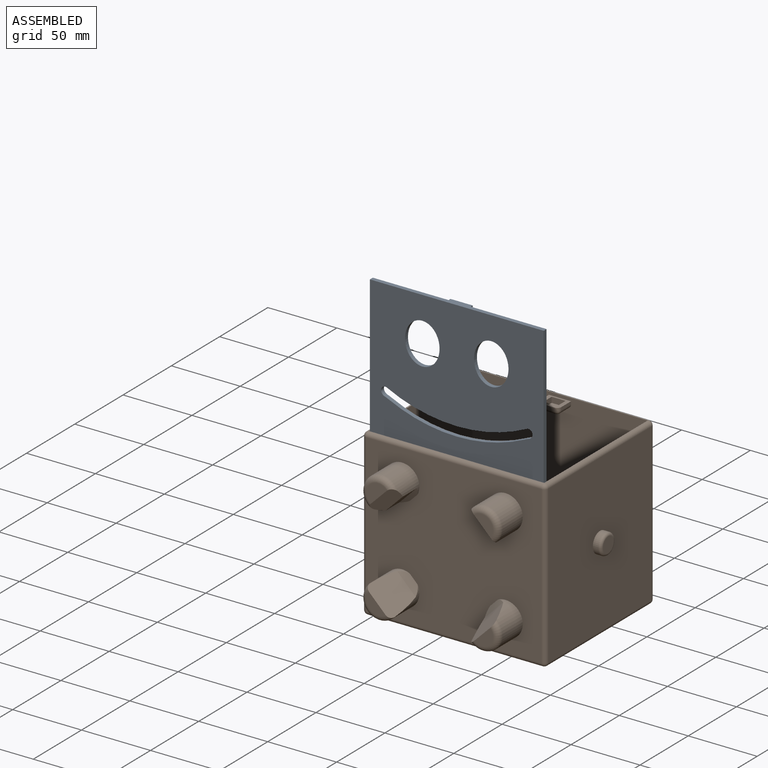
[diagram: assembled view]
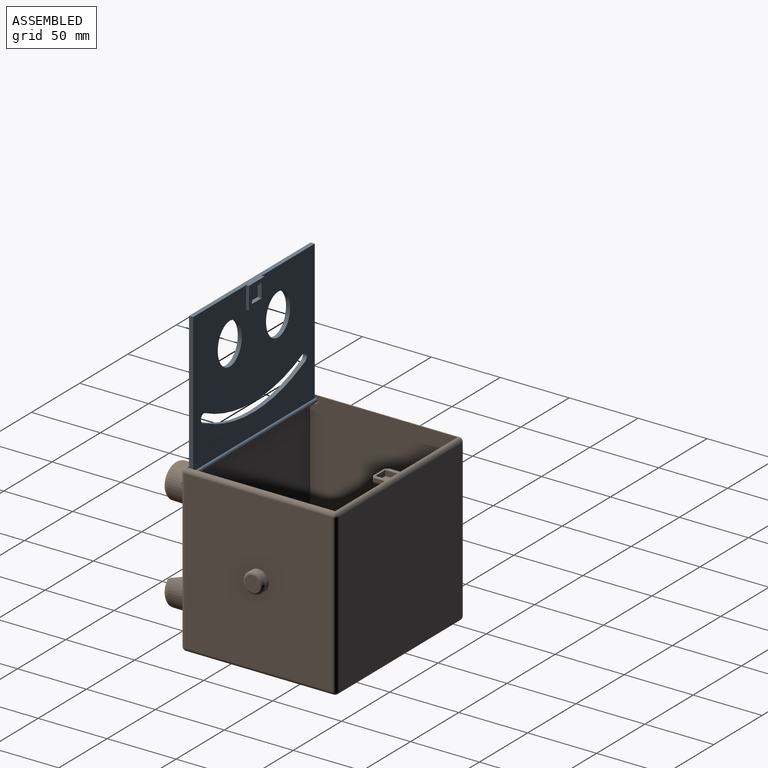
[diagram: assembled view, second angle]
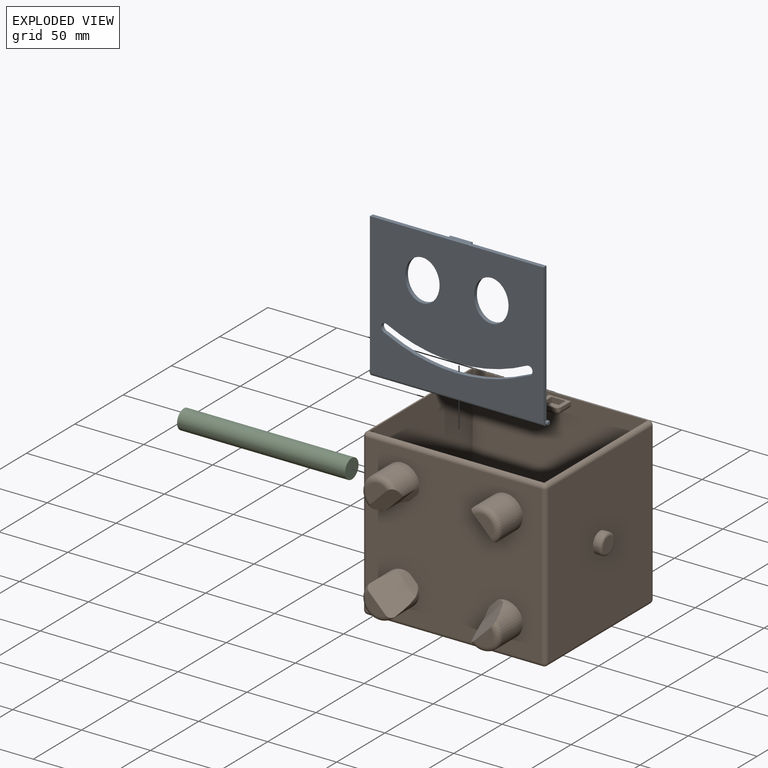
[diagram: exploded view]
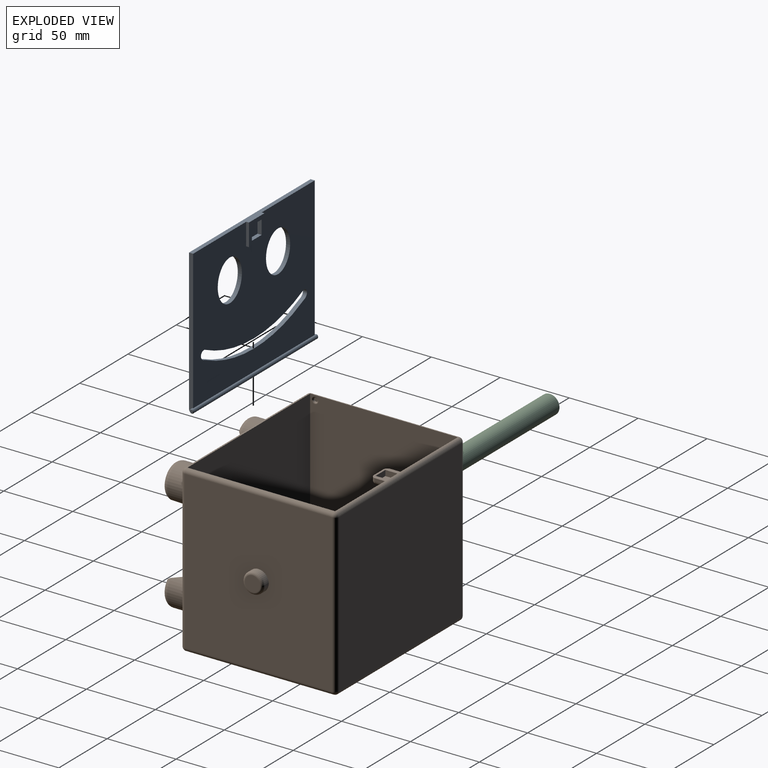
[diagram: exploded view, second angle]
ASSEMBLY  parts=3 mates=2
PART A: 31 faces, bbox 129.4x104.8x5 mm
  f0: plane 126x101.3mm, normal (0,0,-1), area 10600.9mm2, adj f2,f7,f8,f9,f12,f13,f14,f15
  f1: plane 126x102.51mm, normal (0,0,1), area 11012.4mm2, adj f7,f8,f9,f11,f12,f13,f14,f15
  f2: cylinder r=1.5mm len=128.4mm, axis (1,0,0), area 616.4mm2, adj f0,f5,f6,f7,f9,f10
  f3: plane 2x2mm, normal (-1,0,0), area 3.1mm2, adj f6
  f4: plane 2x2mm, normal (1,0,0), area 3.1mm2, adj f5
  f5: torus R=1mm, axis (1,0,0), area 6.5mm2, adj f2,f4
  f6: torus R=1mm, axis (1,0,0), area 6.5mm2, adj f2,f3
  f7: plane 104.8x3mm, normal (1,0,0), area 309.7mm2, adj f0,f1,f2,f8,f10,f11
  f8: plane 126x5mm, normal (0,1,0), area 410.2mm2, adj f0,f1,f7,f9,f25,f27,f29
  f9: plane 104.8x3mm, normal (-1,0,0), area 309.7mm2, adj f0,f1,f2,f8,f10,f11
  f10: cylinder r=2.5mm len=126mm, axis (1,0,0), area 202.7mm2, adj f2,f7,f9,f11
  f11: cylinder r=2.5mm len=126mm, axis (-1,0,0), area 365.2mm2, adj f1,f7,f9,f10
  f12: extruded ~30x25mm, area 259.7mm2, adj f0,f1
  f13: extruded ~30x25mm, area 259.7mm2, adj f0,f1
  f14: cylinder r=114.2mm len=101.22mm, axis (0,0,1), area 314.6mm2, adj f0,f1,f20,f21
  f15: cylinder r=4mm len=3mm, axis (0,0,1), area 11mm2, adj f0,f1,f19,f21
  f16: cylinder r=114.2mm len=98.62mm, axis (0,0,1), area 305.9mm2, adj f0,f1,f18,f19
  f17: cylinder r=4mm len=3mm, axis (0,0,1), area 10.7mm2, adj f0,f1,f18,f20
  f18: cylinder r=25mm len=3.12mm, axis (0,0,1), area 10.1mm2, adj f0,f1,f16,f17
  f19: cylinder r=25mm len=3mm, axis (0,0,1), area 9mm2, adj f0,f1,f15,f16
  f20: cylinder r=3mm len=4.33mm, axis (0,0,1), area 21.6mm2, adj f0,f1,f14,f17
  f21: cylinder r=3mm len=4.33mm, axis (0,0,1), area 21.2mm2, adj f0,f1,f14,f15
  f22: plane 10.1x3mm, normal (0,1,0), area 30.3mm2, adj f23,f28,f29,f30
  f23: plane 10.1x3mm, normal (-1,0,0), area 30.3mm2, adj f22,f24,f29,f30
  f24: plane 10.1x3mm, normal (0,-1,0), area 30.3mm2, adj f23,f28,f29,f30
  f25: plane 16.1x2mm, normal (1,0,0), area 32.2mm2, adj f0,f8,f26,f29
  f26: plane 16.1x2mm, normal (0,-1,0), area 32.2mm2, adj f0,f25,f27,f29
  f27: plane 16.1x2mm, normal (-1,0,0), area 32.2mm2, adj f0,f8,f26,f29
  f28: plane 10.1x3mm, normal (1,0,0), area 30.3mm2, adj f22,f24,f29,f30
  f29: plane 16.1x16.1mm, normal (0,0,-1), area 157.2mm2, adj f8,f22,f23,f24,f25,f26,f27,f28
  f30: plane 10.1x10.1mm, normal (0,0,-1), area 102mm2, adj f22,f23,f24,f28
PART B: 92 faces, bbox 144x138x120 mm
  f0: plane 127x114mm, normal (0,-1,0), area 12528.7mm2, adj f19,f20,f24,f27,f72,f74,f76,f78
  f1: plane 16x13mm, normal (0,0,1), area 102.1mm2, adj f31,f55,f57,f58,f59,f60,f61,f62
  f2: cylinder r=7.5mm len=15mm, axis (-1,0,0), area 188.5mm2, adj f4,f36
  f3: plane 11x11mm, normal (1,0,0), area 95mm2, adj f4
  f4: torus R=5.5mm, axis (-1,0,0), area 133.7mm2, adj f2,f3
  f5: cylinder r=7.5mm len=15mm, axis (1,0,0), area 235.6mm2, adj f7,f37
  f6: cylinder r=9mm len=18mm, axis (1,0,0), area 282.7mm2, adj f7,f32
  f7: plane 18x18mm, normal (-1,0,0), area 77.8mm2, adj f5,f6
  f8: cylinder r=3mm len=114mm, axis (0,0,1), area 537.2mm2, adj f9,f10,f35,f36
  f9: sphere r=3mm, area 14.1mm2, adj f8,f11,f12
  f10: sphere r=3mm, area 14.1mm2, adj f8,f13,f14
  f11: cylinder r=3mm len=107mm, axis (0,1,0), area 504.2mm2, adj f9,f15,f33,f36
  f12: cylinder r=3mm len=127mm, axis (-1,0,0), area 598.5mm2, adj f9,f16,f33,f35
  f13: cylinder r=3mm len=127mm, axis (1,0,0), area 598.5mm2, adj f10,f17,f31,f35
  f14: cylinder r=3mm len=107mm, axis (0,-1,0), area 504.2mm2, adj f10,f18,f32,f36
  f15: sphere r=3mm, area 14.1mm2, adj f11,f19,f20
  f16: sphere r=3mm, area 14.1mm2, adj f12,f21,f22
  f17: sphere r=3mm, area 14.1mm2, adj f13,f22,f23
  f18: sphere r=3mm, area 14.1mm2, adj f14,f19,f24
  f19: cylinder r=3mm len=114mm, axis (0,0,-1), area 537.2mm2, adj f0,f15,f18,f36
  f20: cylinder r=3mm len=127mm, axis (1,0,0), area 598.5mm2, adj f0,f15,f25,f33
  f21: cylinder r=3mm len=107mm, axis (0,-1,0), area 504.2mm2, adj f16,f25,f33,f34
  f22: cylinder r=3mm len=114mm, axis (0,0,-1), area 537.2mm2, adj f16,f17,f34,f35
  f23: cylinder r=3mm len=107mm, axis (0,1,0), area 504.2mm2, adj f17,f26,f30,f34
  f24: cylinder r=3mm len=127mm, axis (-1,0,0), area 598.5mm2, adj f0,f18,f26,f29
  f25: sphere r=3mm, area 14.1mm2, adj f20,f21,f27
  f26: sphere r=3mm, area 14.1mm2, adj f23,f24,f27
  f27: cylinder r=3mm len=114mm, axis (0,0,1), area 537.2mm2, adj f0,f25,f26,f34
  f28: plane 127x107mm, normal (0,0,1), area 13589mm2, adj f29,f30,f31,f32
  f29: plane 127x117mm, normal (0,1,0), area 14859mm2, adj f24,f28,f30,f32
  f30: plane 117x107mm, normal (1,0,0), area 12244.9mm2, adj f23,f28,f29,f31,f43,f54
  f31: plane 127x117mm, normal (0,-1,0), area 14782.9mm2, adj f1,f13,f28,f30,f32,f55,f56,f57
  f32: plane 117x107mm, normal (-1,0,0), area 12244.9mm2, adj f6,f14,f28,f29,f31,f53
  f33: plane 127x107mm, normal (0,0,-1), area 13589mm2, adj f11,f12,f20,f21
  f34: plane 114x107mm, normal (-1,0,0), area 12021.3mm2, adj f21,f22,f23,f27,f40
  f35: plane 127x114mm, normal (0,1,0), area 14478mm2, adj f8,f12,f13,f22
  f36: plane 114x107mm, normal (1,0,0), area 12021.3mm2, adj f2,f8,f11,f14,f19
  f37: plane 15x15mm, normal (-1,0,0), area 157.1mm2, adj f5,f38
  f38: cylinder r=2.5mm len=5mm, axis (-1,0,0), area 78.5mm2, adj f37,f39
  f39: plane 5x5mm, normal (-1,0,0), area 19.6mm2, adj f38
  f40: cylinder r=7.5mm len=15mm, axis (1,0,0), area 141.4mm2, adj f34,f48
  f41: plane 11x11mm, normal (-1,0,0), area 95mm2, adj f48
  f42: cylinder r=7.5mm len=15mm, axis (-1,0,0), area 235.6mm2, adj f44,f45
  f43: cylinder r=9mm len=18mm, axis (-1,0,0), area 282.7mm2, adj f30,f44
  f44: plane 18x18mm, normal (1,0,0), area 77.8mm2, adj f42,f43
  f45: plane 15x15mm, normal (1,0,0), area 157.1mm2, adj f42,f46
  f46: cylinder r=2.5mm len=5mm, axis (1,0,0), area 47.1mm2, adj f45,f47
  f47: plane 5x5mm, normal (1,0,0), area 19.6mm2, adj f46
  f48: torus R=5.5mm, axis (1,0,0), area 133.7mm2, adj f40,f41
  f49: cylinder r=1.5mm len=3mm, axis (1,0,0), area 4.7mm2, adj f50,f54
  f50: plane 3x3mm, normal (1,0,0), area 7.1mm2, adj f49
  f51: cylinder r=1.5mm len=3mm, axis (-1,0,0), area 4.7mm2, adj f52,f53
  f52: plane 3x3mm, normal (-1,0,0), area 7.1mm2, adj f51
  f53: torus R=2.5mm, axis (1,0,0), area 18.4mm2, adj f32,f51
  f54: torus R=2.5mm, axis (1,0,0), area 18.4mm2, adj f30,f49
  f55: plane 10x2mm, normal (-1,0,0), area 20mm2, adj f1,f31,f67,f70
  f56: plane 10x10mm, normal (0,0,-1), area 100mm2, adj f31,f65,f68,f70
  f57: plane 10x2mm, normal (1,0,0), area 20mm2, adj f1,f31,f64,f65
  f58: plane 10x2mm, normal (0,-1,0), area 20mm2, adj f1,f64,f67,f68
  f59: plane 10.1x4mm, normal (-1,0,0), area 40.4mm2, adj f1,f60,f62,f63
  f60: plane 10.1x4mm, normal (0,-1,0), area 40.4mm2, adj f1,f59,f61,f63
  f61: plane 10.1x4mm, normal (1,0,0), area 40.4mm2, adj f1,f60,f62,f63
  f62: plane 10.1x4mm, normal (0,1,0), area 40.4mm2, adj f1,f59,f61,f63
  f63: plane 10.1x10.1mm, normal (0,0,1), area 102mm2, adj f59,f60,f61,f62
  f64: cylinder r=3mm len=3mm, axis (0,0,-1), area 9.4mm2, adj f1,f57,f58,f66
  f65: cylinder r=3mm len=10mm, axis (0,1,0), area 47.1mm2, adj f31,f56,f57,f66
  f66: sphere r=3mm, area 14.1mm2, adj f64,f65,f68
  f67: cylinder r=3mm len=3mm, axis (0,0,1), area 9.4mm2, adj f1,f55,f58,f69
  f68: cylinder r=3mm len=10mm, axis (-1,0,0), area 47.1mm2, adj f56,f58,f66,f69
  f69: sphere r=3mm, area 14.1mm2, adj f67,f68,f70
  f70: cylinder r=3mm len=10mm, axis (0,1,0), area 47.1mm2, adj f31,f55,f56,f69
  f71: plane 14x12.5mm, normal (0.71,0,-0.71), area 247.5mm2, adj f72,f83,f84
  f72: cylinder r=12.5mm len=25mm, axis (0,1,0), area 1231.8mm2, adj f0,f71,f83,f84,f91
  f73: plane 15.07x15.07mm, normal (0,-1,0), area 127.7mm2, adj f84,f91
  f74: cylinder r=12.5mm len=25mm, axis (0,1,0), area 1075.7mm2, adj f0,f82,f86,f89
  f75: plane 14x14mm, normal (0,-1,0), area 101.8mm2, adj f86,f89
  f76: cylinder r=12.5mm len=25mm, axis (0,1,0), area 1075.7mm2, adj f0,f81,f87,f88
  f77: plane 14x14mm, normal (0,-1,0), area 101.8mm2, adj f87,f88
  f78: cylinder r=12.5mm len=25mm, axis (0,1,0), area 1075.7mm2, adj f0,f80,f85,f90
  f79: plane 14x14mm, normal (0,-1,0), area 101.8mm2, adj f85,f90
  f80: plane 13.46x13.46mm, normal (0.5,-0.71,0.5), area 76.4mm2, adj f0,f78,f85
  f81: plane 13.46x13.46mm, normal (-0.5,-0.71,0.5), area 76.4mm2, adj f0,f76,f87
  f82: plane 13.46x13.46mm, normal (-0.5,-0.71,-0.5), area 76.4mm2, adj f0,f74,f86
  f83: plane 12.5x12.5mm, normal (0.5,-0.71,-0.5), area 58mm2, adj f0,f71,f72
  f84: plane 18.98x18.98mm, normal (0.5,-0.71,-0.5), area 244.6mm2, adj f71,f72,f73,f91
  f85: plane 21.29x20.85mm, normal (0.65,-0.38,0.65), area 528.4mm2, adj f78,f79,f80,f90
  f86: plane 21.29x20.85mm, normal (-0.65,-0.38,-0.65), area 528.4mm2, adj f74,f75,f82,f89
  f87: plane 21.29x20.85mm, normal (-0.65,-0.38,0.65), area 528.4mm2, adj f76,f77,f81,f88
  f88: torus R=8.5mm, axis (0,-1,0), area 217mm2, adj f76,f77,f87
  f89: torus R=8.5mm, axis (0,-1,0), area 217mm2, adj f74,f75,f86
  f90: torus R=8.5mm, axis (0,-1,0), area 217mm2, adj f78,f79,f85
  f91: torus R=8.5mm, axis (0,-1,0), area 247.2mm2, adj f72,f73,f84
PART C: 3 faces, bbox 121.9x14x14 mm
  f0: cylinder r=7mm len=121.85mm, axis (1,0,0), area 5359.2mm2, adj f1,f2
  f1: plane 14x14mm, normal (-1,0,0), area 153.9mm2, adj f0
  f2: plane 14x14mm, normal (1,0,0), area 153.9mm2, adj f0
PLACE A rot(axis=(1,0,0),90deg) t=(15.23,93.65,161.55)mm
PLACE B t=(15.53,27.15,-4.95)mm
PLACE C t=(12.88,27.15,-4.95)mm
MATE slider C.f0 <-> B.f2  axis (-1,0,0) through (-47.97,27.15,56.55)mm
MATE revolute A.f2 <-> B.f49  axis (-1,0,0) through (-49.47,-22.85,111.55)mm
